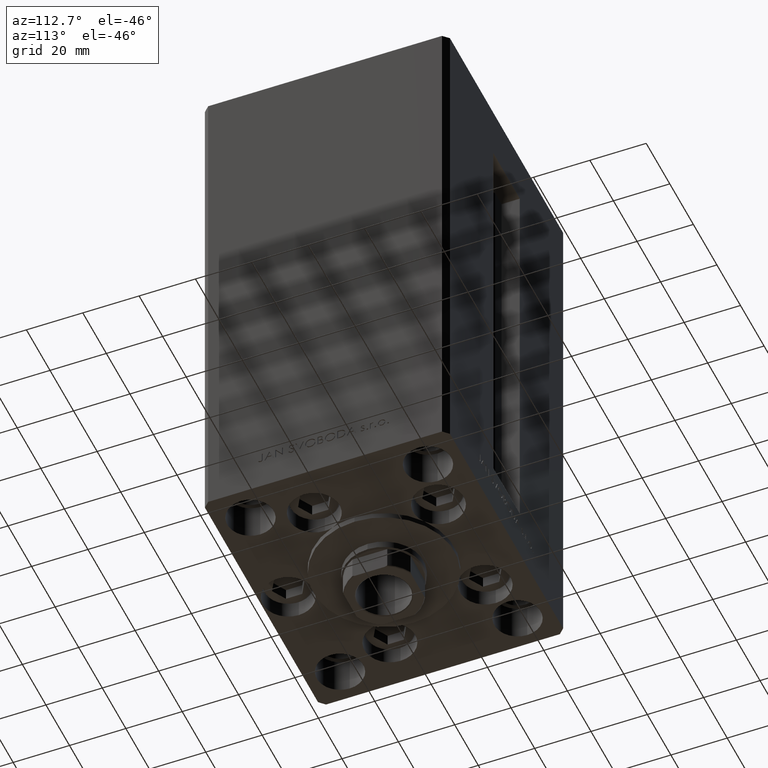
[diagram: clean part render]
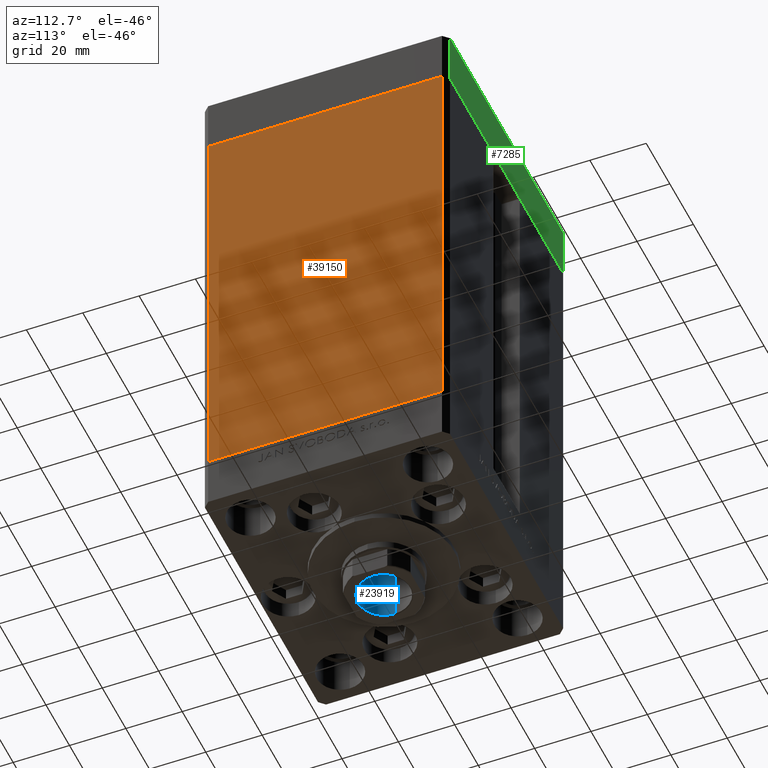
[diagram: same view with three faces highlighted in distinct colors, each labeled with its STEP entity id]
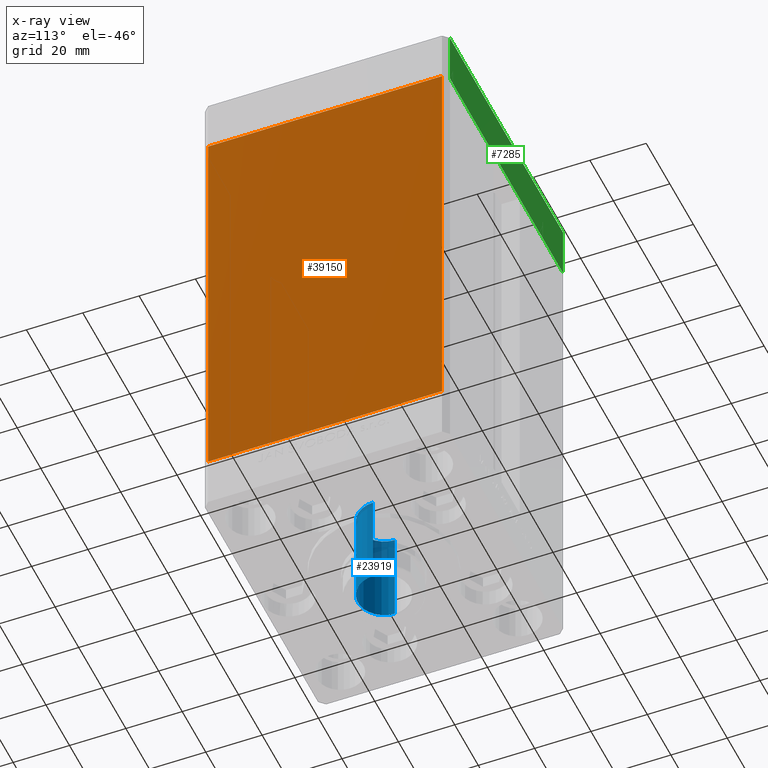
[diagram: x-ray of the same camera — body ghosted, the three highlighted faces saturated]
A machine part, auxiliary view with three faces highlighted in distinct colors.
The next image is the same camera in x-ray (body ghosted, the three faces saturated) — at least one of them is partly hidden behind the body in this view.
Their STEP definitions:

[orange] entity #39150 — the highlighted planar face has unit normal (1, -0, 0).
#3 = PLANE ( 'NONE',  #46661 ) ;
#888 = DIRECTION ( 'NONE',  ( -0.000000000000000000, -0.000000000000000000, -1.000000000000000000 ) ) ;
#3154 = DIRECTION ( 'NONE',  ( -3.344045254895050973E-16, -1.000000000000000000, 0.000000000000000000 ) ) ;
#4630 = CARTESIAN_POINT ( 'NONE',  ( 49.99999999999998579, -41.49999999999999289, 148.5000000000000000 ) ) ;
#5280 = DIRECTION ( 'NONE',  ( -3.344045254895050973E-16, -1.000000000000000000, 0.000000000000000000 ) ) ;
#6506 = EDGE_LOOP ( 'NONE', ( #15164, #12807, #25525, #25696 ) ) ;
#7734 = VERTEX_POINT ( 'NONE', #43407 ) ;
#8226 = FACE_OUTER_BOUND ( 'NONE', #6506, .T. ) ;
#12807 = ORIENTED_EDGE ( 'NONE', *, *, #14569, .F. ) ;
#14569 = EDGE_CURVE ( 'NONE', #7734, #18305, #43625, .T. ) ;
#15164 = ORIENTED_EDGE ( 'NONE', *, *, #47675, .F. ) ;
#15185 = CARTESIAN_POINT ( 'NONE',  ( 50.00000000000001421, 41.49999999999999289, 148.5000000000000000 ) ) ;
#17069 = DIRECTION ( 'NONE',  ( -0.000000000000000000, -0.000000000000000000, -1.000000000000000000 ) ) ;
#18305 = VERTEX_POINT ( 'NONE', #23101 ) ;
#20227 = VERTEX_POINT ( 'NONE', #23380 ) ;
#20692 = LINE ( 'NONE', #36064, #26388 ) ;
#22544 = EDGE_CURVE ( 'NONE', #7734, #20227, #20692, .T. ) ;
#23101 = CARTESIAN_POINT ( 'NONE',  ( 50.00000000000001421, 41.49999999999999289, 0.000000000000000000 ) ) ;
#23380 = CARTESIAN_POINT ( 'NONE',  ( 49.99999999999998579, -41.49999999999999289, 148.5000000000000000 ) ) ;
#25426 = VECTOR ( 'NONE', #888, 1000.000000000000000 ) ;
#25525 = ORIENTED_EDGE ( 'NONE', *, *, #22544, .T. ) ;
#25696 = ORIENTED_EDGE ( 'NONE', *, *, #47851, .T. ) ;
#26247 = VECTOR ( 'NONE', #17069, 1000.000000000000000 ) ;
#26255 = LINE ( 'NONE', #41614, #43626 ) ;
#26388 = VECTOR ( 'NONE', #5280, 1000.000000000000000 ) ;
#31084 = DIRECTION ( 'NONE',  ( 1.000000000000000000, -3.344045254895050480E-16, 0.000000000000000000 ) ) ;
#31401 = VERTEX_POINT ( 'NONE', #31610 ) ;
#31610 = CARTESIAN_POINT ( 'NONE',  ( 49.99999999999998579, -41.49999999999999289, 0.000000000000000000 ) ) ;
#32706 = CARTESIAN_POINT ( 'NONE',  ( 50.00000000000001421, 41.49999999999999289, 148.5000000000000000 ) ) ;
#36064 = CARTESIAN_POINT ( 'NONE',  ( 50.00000000000001421, 41.49999999999999289, 148.5000000000000000 ) ) ;
#37888 = LINE ( 'NONE', #4630, #25426 ) ;
#39150 = ADVANCED_FACE ( 'NONE', ( #8226 ), #3, .T. ) ;
#41614 = CARTESIAN_POINT ( 'NONE',  ( 50.00000000000001421, 41.49999999999999289, 0.000000000000000000 ) ) ;
#41727 = DIRECTION ( 'NONE',  ( 3.344045254895050480E-16, 1.000000000000000000, 0.000000000000000000 ) ) ;
#43407 = CARTESIAN_POINT ( 'NONE',  ( 50.00000000000001421, 41.49999999999999289, 148.5000000000000000 ) ) ;
#43625 = LINE ( 'NONE', #32706, #26247 ) ;
#43626 = VECTOR ( 'NONE', #3154, 1000.000000000000000 ) ;
#46661 = AXIS2_PLACEMENT_3D ( 'NONE', #15185, #31084, #41727 ) ;
#47675 = EDGE_CURVE ( 'NONE', #18305, #31401, #26255, .T. ) ;
#47851 = EDGE_CURVE ( 'NONE', #20227, #31401, #37888, .T. ) ;

[blue] entity #23919 — the highlighted cylindrical surface (edge-blend (fillet) strip) has radius 9.25 mm, axis along (0, 0, -1).
#1544 = EDGE_CURVE ( 'NONE', #17635, #19581, #36239, .T. ) ;
#1718 = VERTEX_POINT ( 'NONE', #33049 ) ;
#4271 = AXIS2_PLACEMENT_3D ( 'NONE', #17039, #21015, #32181 ) ;
#4764 = DIRECTION ( 'NONE',  ( 0.000000000000000000, 0.000000000000000000, 1.000000000000000000 ) ) ;
#7048 = ORIENTED_EDGE ( 'NONE', *, *, #40536, .F. ) ;
#8723 = ORIENTED_EDGE ( 'NONE', *, *, #1544, .T. ) ;
#12218 = CARTESIAN_POINT ( 'NONE',  ( 0.000000000000000000, 0.000000000000000000, 130.2500000000000000 ) ) ;
#13089 = DIRECTION ( 'NONE',  ( -0.000000000000000000, -0.000000000000000000, 1.000000000000000000 ) ) ;
#13338 = CARTESIAN_POINT ( 'NONE',  ( -9.249999999999996447, 1.132798289211301304E-15, 165.2500000000000000 ) ) ;
#14015 = AXIS2_PLACEMENT_3D ( 'NONE', #19180, #4764, #19933 ) ;
#16447 = DIRECTION ( 'NONE',  ( 1.000000000000000000, 0.000000000000000000, 0.000000000000000000 ) ) ;
#17039 = CARTESIAN_POINT ( 'NONE',  ( 0.000000000000000000, 0.000000000000000000, 165.2500000000000000 ) ) ;
#17635 = VERTEX_POINT ( 'NONE', #27260 ) ;
#18291 = VERTEX_POINT ( 'NONE', #27327 ) ;
#19180 = CARTESIAN_POINT ( 'NONE',  ( 0.000000000000000000, 0.000000000000000000, 164.9499999999999886 ) ) ;
#19581 = VERTEX_POINT ( 'NONE', #35157 ) ;
#19933 = DIRECTION ( 'NONE',  ( 1.000000000000000000, 0.000000000000000000, 0.000000000000000000 ) ) ;
#21015 = DIRECTION ( 'NONE',  ( -0.000000000000000000, -0.000000000000000000, 1.000000000000000000 ) ) ;
#21208 = VECTOR ( 'NONE', #25302, 1000.000000000000000 ) ;
#21746 = VECTOR ( 'NONE', #13089, 1000.000000000000000 ) ;
#22297 = LINE ( 'NONE', #28788, #21208 ) ;
#23902 = DIRECTION ( 'NONE',  ( -0.000000000000000000, -0.000000000000000000, 1.000000000000000000 ) ) ;
#23919 = ADVANCED_FACE ( 'NONE', ( #25473 ), #33155, .F. ) ;
#24530 = LINE ( 'NONE', #13338, #21746 ) ;
#25302 = DIRECTION ( 'NONE',  ( -0.000000000000000000, -0.000000000000000000, 1.000000000000000000 ) ) ;
#25473 = FACE_OUTER_BOUND ( 'NONE', #30629, .T. ) ;
#25652 = EDGE_CURVE ( 'NONE', #1718, #17635, #24530, .T. ) ;
#25898 = ORIENTED_EDGE ( 'NONE', *, *, #25652, .T. ) ;
#27260 = CARTESIAN_POINT ( 'NONE',  ( -9.249999999999996447, 1.132798289211301304E-15, 164.9499999999999886 ) ) ;
#27327 = CARTESIAN_POINT ( 'NONE',  ( 9.249999999999994671, 0.000000000000000000, 130.2500000000000000 ) ) ;
#28788 = CARTESIAN_POINT ( 'NONE',  ( 9.249999999999996447, 0.000000000000000000, 165.2500000000000000 ) ) ;
#30629 = EDGE_LOOP ( 'NONE', ( #31142, #25898, #8723, #7048 ) ) ;
#31142 = ORIENTED_EDGE ( 'NONE', *, *, #36342, .F. ) ;
#32181 = DIRECTION ( 'NONE',  ( 1.000000000000000000, 0.000000000000000000, 0.000000000000000000 ) ) ;
#33049 = CARTESIAN_POINT ( 'NONE',  ( -9.249999999999994671, 1.132798289211300909E-15, 130.2500000000000000 ) ) ;
#33155 = CYLINDRICAL_SURFACE ( 'NONE', #4271, 9.249999999999996447 ) ;
#35157 = CARTESIAN_POINT ( 'NONE',  ( 9.249999999999996447, 0.000000000000000000, 164.9499999999999886 ) ) ;
#36239 = CIRCLE ( 'NONE', #14015, 9.249999999999996447 ) ;
#36342 = EDGE_CURVE ( 'NONE', #1718, #18291, #42592, .T. ) ;
#40536 = EDGE_CURVE ( 'NONE', #18291, #19581, #22297, .T. ) ;
#42592 = CIRCLE ( 'NONE', #46584, 9.249999999999994671 ) ;
#46584 = AXIS2_PLACEMENT_3D ( 'NONE', #12218, #23902, #16447 ) ;

[green] entity #7285 — the highlighted planar face has unit normal (-0, 1, 0).
#751 = CARTESIAN_POINT ( 'NONE',  ( 47.99999999999990763, 43.50000000000000000, 0.000000000000000000 ) ) ;
#2758 = VERTEX_POINT ( 'NONE', #24835 ) ;
#2770 = DIRECTION ( 'NONE',  ( -1.000000000000000000, -3.614007241618350743E-16, 0.000000000000000000 ) ) ;
#2783 = EDGE_CURVE ( 'NONE', #25432, #41031, #33011, .T. ) ;
#5218 = LINE ( 'NONE', #24114, #10995 ) ;
#6020 = DIRECTION ( 'NONE',  ( -3.614007241618350743E-16, 1.000000000000000000, 0.000000000000000000 ) ) ;
#6520 = EDGE_CURVE ( 'NONE', #34730, #2758, #5218, .T. ) ;
#7285 = ADVANCED_FACE ( 'NONE', ( #48003 ), #25880, .T. ) ;
#10945 = ORIENTED_EDGE ( 'NONE', *, *, #14917, .T. ) ;
#10995 = VECTOR ( 'NONE', #27593, 1000.000000000000000 ) ;
#13273 = VECTOR ( 'NONE', #18834, 1000.000000000000000 ) ;
#14129 = CARTESIAN_POINT ( 'NONE',  ( 47.99999999999990763, 43.50000000000000000, -19.00000000000000000 ) ) ;
#14917 = EDGE_CURVE ( 'NONE', #25432, #34730, #25625, .T. ) ;
#15235 = ORIENTED_EDGE ( 'NONE', *, *, #2783, .F. ) ;
#15911 = EDGE_LOOP ( 'NONE', ( #46634, #15235, #10945, #29369 ) ) ;
#18834 = DIRECTION ( 'NONE',  ( 0.000000000000000000, 0.000000000000000000, 1.000000000000000000 ) ) ;
#19090 = VECTOR ( 'NONE', #22139, 1000.000000000000000 ) ;
#21616 = VECTOR ( 'NONE', #23260, 1000.000000000000000 ) ;
#22139 = DIRECTION ( 'NONE',  ( -1.000000000000000000, -3.614007241618350743E-16, 0.000000000000000000 ) ) ;
#22527 = LINE ( 'NONE', #42113, #21616 ) ;
#23260 = DIRECTION ( 'NONE',  ( -1.000000000000000000, -3.614007241618350743E-16, 0.000000000000000000 ) ) ;
#23722 = EDGE_CURVE ( 'NONE', #41031, #2758, #22527, .T. ) ;
#24114 = CARTESIAN_POINT ( 'NONE',  ( -48.00000000000000711, 43.49999999999996447, -19.00000000000000000 ) ) ;
#24835 = CARTESIAN_POINT ( 'NONE',  ( -48.00000000000000711, 43.49999999999996447, 0.000000000000000000 ) ) ;
#25432 = VERTEX_POINT ( 'NONE', #32272 ) ;
#25625 = LINE ( 'NONE', #44958, #19090 ) ;
#25880 = PLANE ( 'NONE',  #31544 ) ;
#27593 = DIRECTION ( 'NONE',  ( 0.000000000000000000, 0.000000000000000000, 1.000000000000000000 ) ) ;
#29135 = CARTESIAN_POINT ( 'NONE',  ( 47.99999999999990763, 43.50000000000000000, -19.00000000000000000 ) ) ;
#29369 = ORIENTED_EDGE ( 'NONE', *, *, #6520, .T. ) ;
#31544 = AXIS2_PLACEMENT_3D ( 'NONE', #29135, #6020, #2770 ) ;
#32272 = CARTESIAN_POINT ( 'NONE',  ( 47.99999999999990763, 43.50000000000000000, -19.00000000000000000 ) ) ;
#33011 = LINE ( 'NONE', #14129, #13273 ) ;
#34730 = VERTEX_POINT ( 'NONE', #42912 ) ;
#41031 = VERTEX_POINT ( 'NONE', #751 ) ;
#42113 = CARTESIAN_POINT ( 'NONE',  ( 47.99999999999990763, 43.50000000000000000, 0.000000000000000000 ) ) ;
#42912 = CARTESIAN_POINT ( 'NONE',  ( -48.00000000000000711, 43.49999999999996447, -19.00000000000000000 ) ) ;
#44958 = CARTESIAN_POINT ( 'NONE',  ( 47.99999999999990763, 43.50000000000000000, -19.00000000000000000 ) ) ;
#46634 = ORIENTED_EDGE ( 'NONE', *, *, #23722, .F. ) ;
#48003 = FACE_OUTER_BOUND ( 'NONE', #15911, .T. ) ;